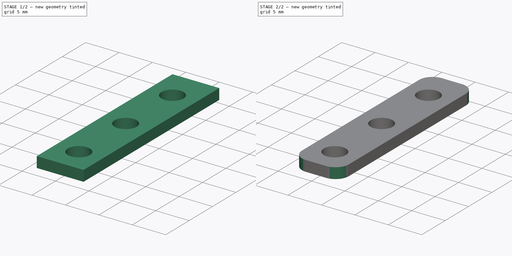
[diagram: build sequence overview — one tinted view per stage of 2, left to right]
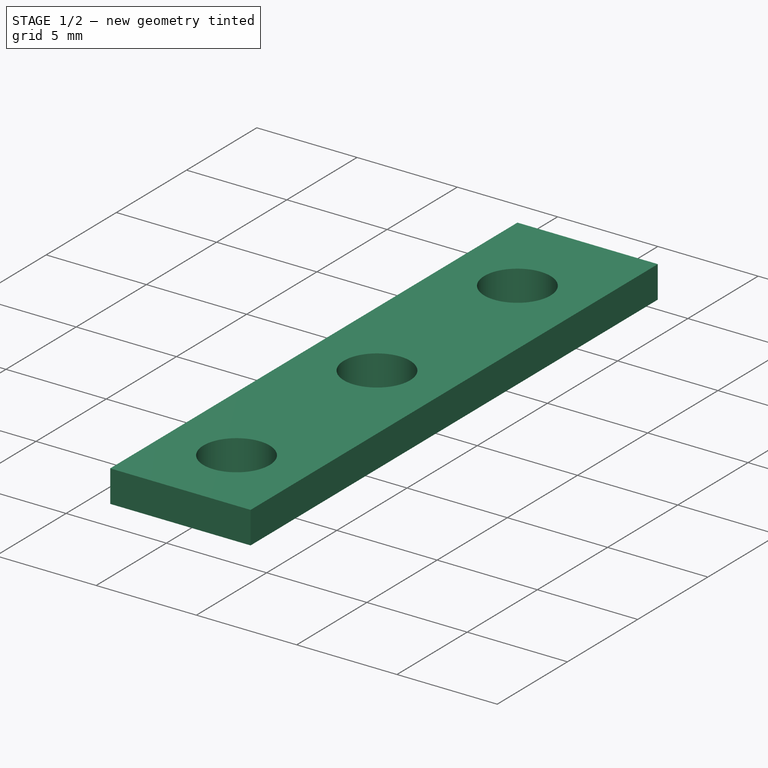
[diagram: stage 1 of 2 — iso view after this stage's code; geometry added in this stage tinted green]
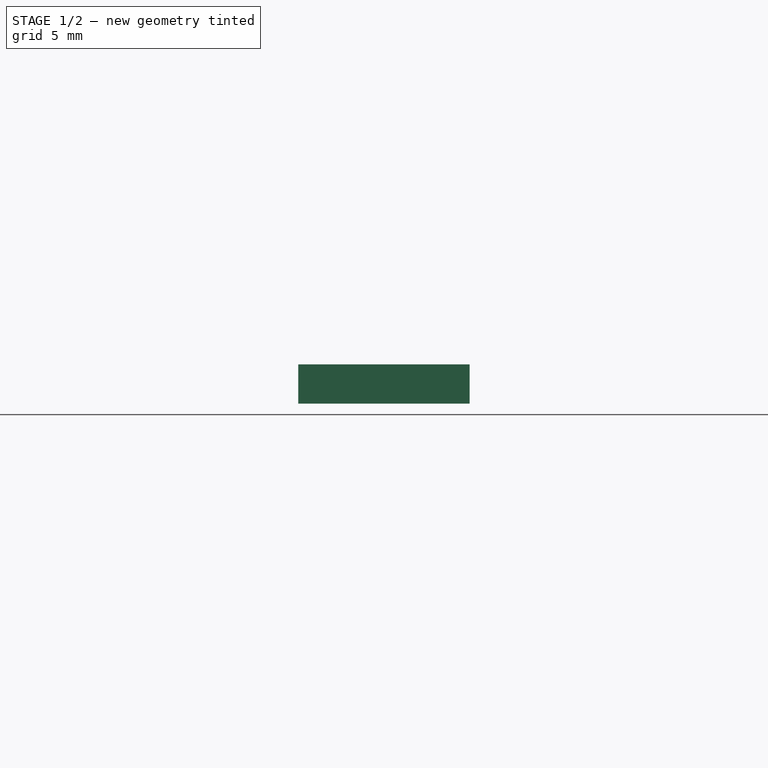
[diagram: stage 1 of 2 — front view after this stage's code; geometry added in this stage tinted green]
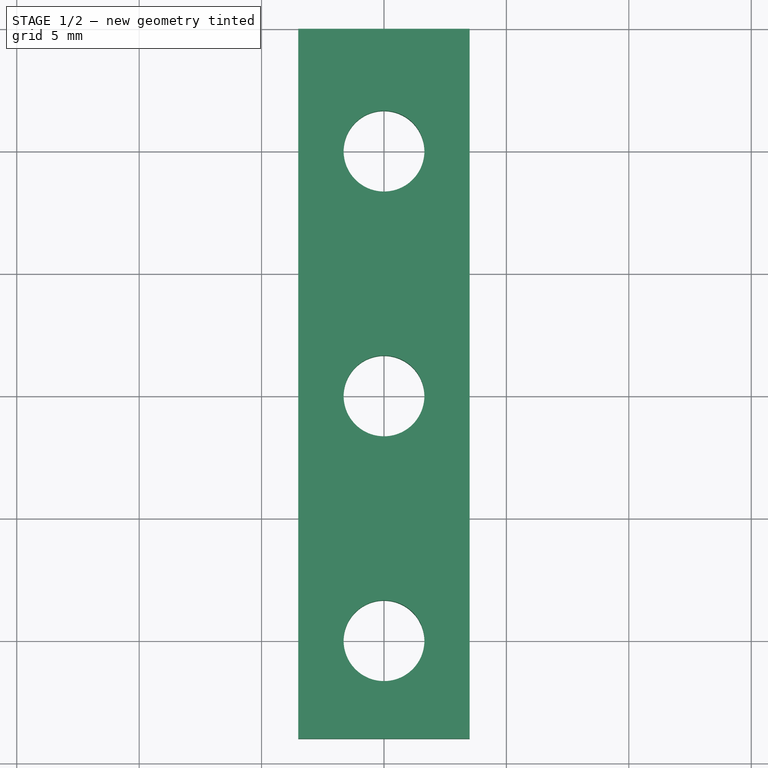
[diagram: stage 1 of 2 — top view after this stage's code; geometry added in this stage tinted green]
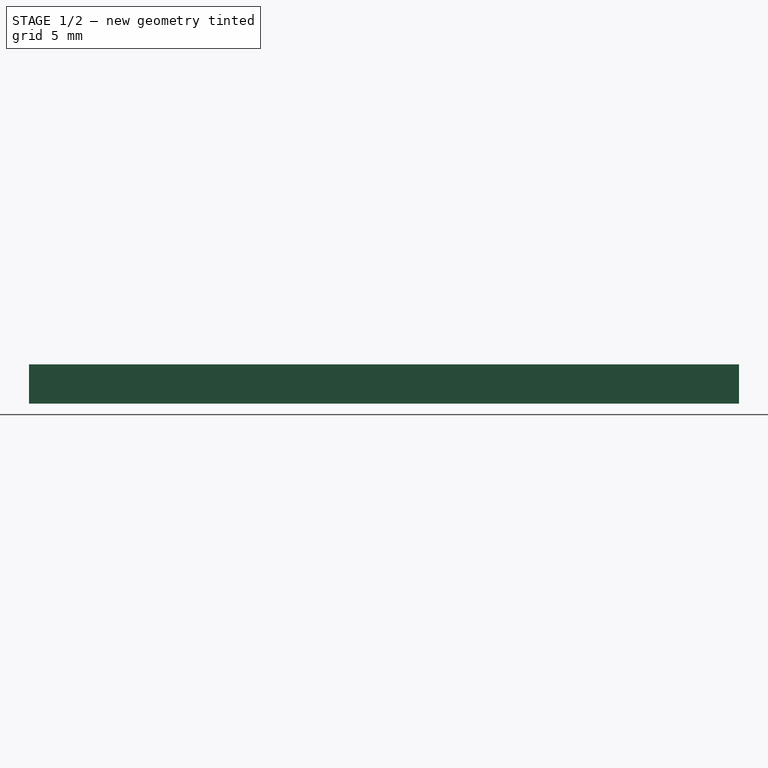
[diagram: stage 1 of 2 — right view after this stage's code; geometry added in this stage tinted green]
FCSTD DOCUMENT  (FreeCAD 0.19R24276 (Git))
Label: Pcb_support_spacer_bottom_v1
License: All rights reserved
LicenseURL: http://en.wikipedia.org/wiki/All_rights_reserved
objects: Sketcher::SketchObject×1, PartDesign::Pad×1, PartDesign::Fillet×1, PartDesign::Body×1
note: 6 computed .brp shape members not serialized (recipe doc carries the construction recipe); baked Part::Feature solids carry a one-line shape summary decoded from their .brp

FEATURE [Sketcher::SketchObject] Sketch
  FullyConstrained = true
  MapMode = 5
  Support = -> [XY_Plane]
  sketch-geometry (12):
    g0: Circle CenterX=0 CenterY=0 CenterZ=0 NormalX=0 NormalY=0 NormalZ=1 AngleXU=0 Radius=1.65
    g1: Circle CenterX=0 CenterY=-10 CenterZ=0 NormalX=0 NormalY=0 NormalZ=1 AngleXU=0 Radius=1.65
    g2: LineSegment StartX=3.5 StartY=5 StartZ=0 EndX=3.5 EndY=-24 EndZ=0
    g3: LineSegment StartX=3.5 StartY=-24 StartZ=0 EndX=-3.5 EndY=-24 EndZ=0
    g4: LineSegment StartX=-3.5 StartY=-24 StartZ=0 EndX=-3.5 EndY=-5 EndZ=0
    g5: LineSegment StartX=0 StartY=0 StartZ=0 EndX=0 EndY=-24 EndZ=0
    g6: LineSegment StartX=-10 StartY=5 StartZ=0 EndX=-10 EndY=-5 EndZ=0
    g7: LineSegment StartX=-10 StartY=-5 StartZ=0 EndX=-3.5 EndY=-5 EndZ=0
    g8: LineSegment StartX=-10 StartY=5 StartZ=0 EndX=3.5 EndY=5 EndZ=0
    g9: Circle CenterX=0 CenterY=-20 CenterZ=0 NormalX=0 NormalY=0 NormalZ=1 AngleXU=0 Radius=1.65
    g10: LineSegment StartX=3.5 StartY=5 StartZ=0 EndX=-3.5 EndY=5 EndZ=0
    g11: LineSegment StartX=-3.5 StartY=-24 StartZ=0 EndX=-3.5 EndY=5 EndZ=0
  constraints (34):
    c: Coincident(g0,g-1)
    c: PointOnObject(g1,g-2)
    c: Equal(g0,g1)
    c: Diameter(g1) = 3.3
    c: Coincident(g2,g3)
    c: Coincident(g3,g4)
    c: Horizontal(g3)
    c: Vertical(g2)
    c: Vertical(g4)
    c: Coincident(g5,g0)
    c: PointOnObject(g5,g-2)
    c: Symmetric(g3,g2,g5)
    c: DistanceX(g3,g3) = 7
    c: DistanceY(g1,g0) = 10
    c: DistanceY(g3,g1) = 14
    c: Vertical(g6)
    c: DistanceX(g6,g0) = 10
    c: Horizontal(g7)
    c: Coincident(g6,g7)
    c: Coincident(g4,g7)
    c: DistanceY(g6,g6) = 10
    c: Coincident(g8,g6)
    c: Coincident(g8,g2)
    c: Horizontal(g8)
    c: DistanceY(g0,g2) = 5
    c: PointOnObject(g9,g-2)
    c: Equal(g1,g9)
    c: DistanceY(g9,g1) = 10
    c: Coincident(g10,g2)
    c: Horizontal(g10)
    c: Coincident(g11,g3)
    c: Vertical(g11)
    c: PointOnObject(g11,g8)
    c: PointOnObject(g10,g11)
FEATURE [PartDesign::Pad] Pad
  Direction = (1,1,1)
  Length = 1.6
  Length2 = 100
  Profile = -> Sketch
  Type = 0
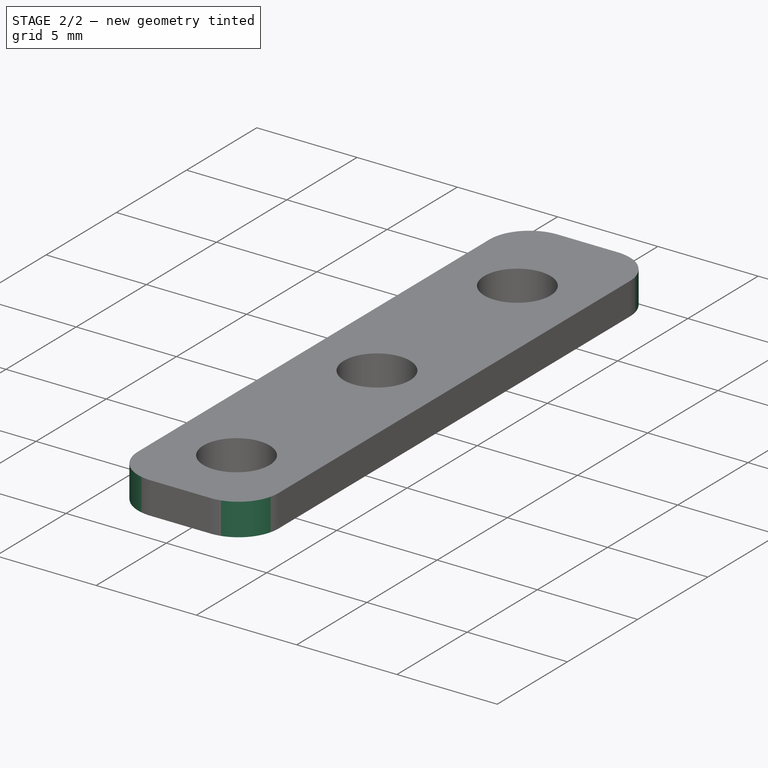
[diagram: stage 2 of 2 — iso view after this stage's code; geometry added in this stage tinted green]
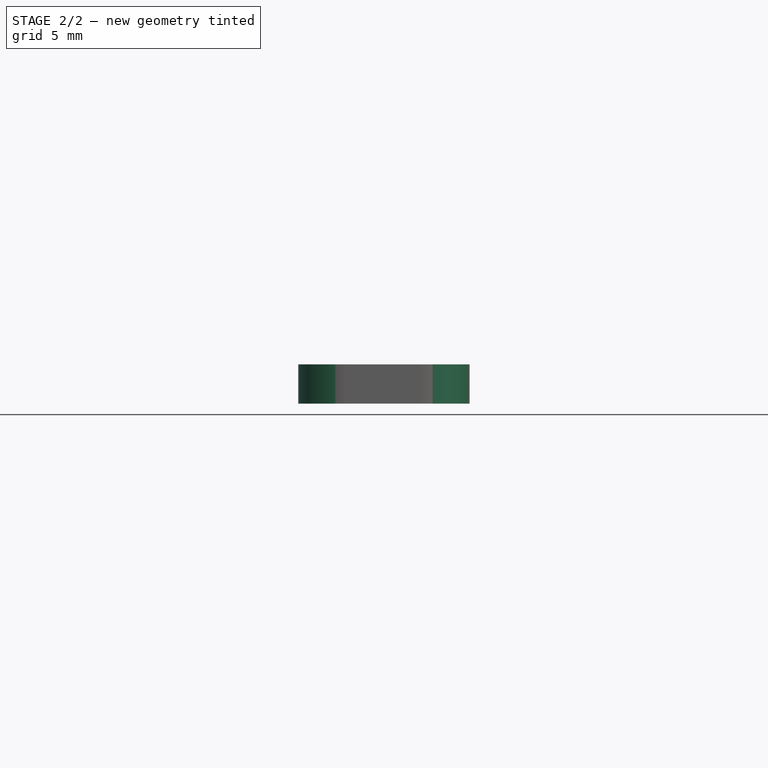
[diagram: stage 2 of 2 — front view after this stage's code; geometry added in this stage tinted green]
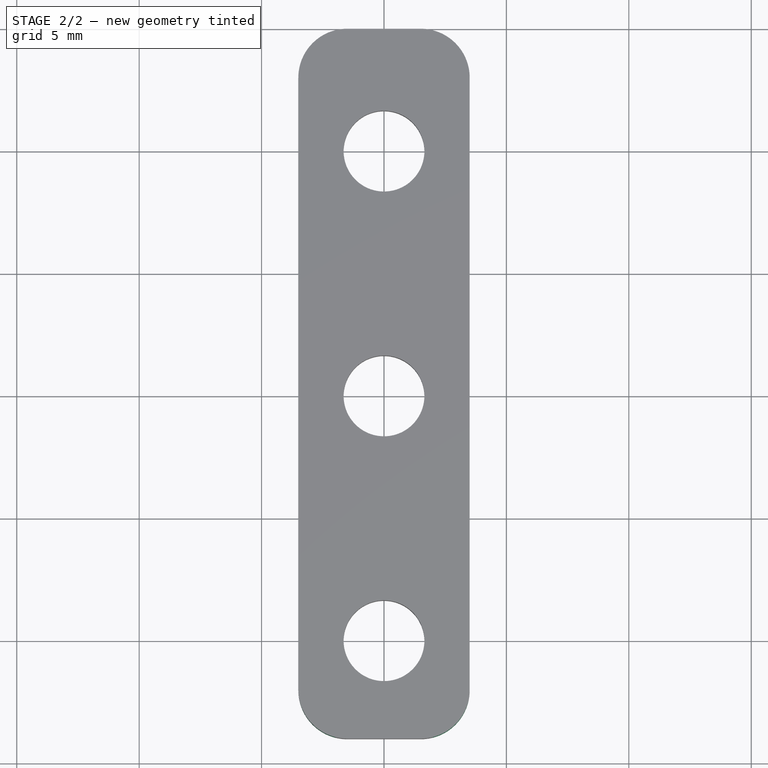
[diagram: stage 2 of 2 — top view after this stage's code; geometry added in this stage tinted green]
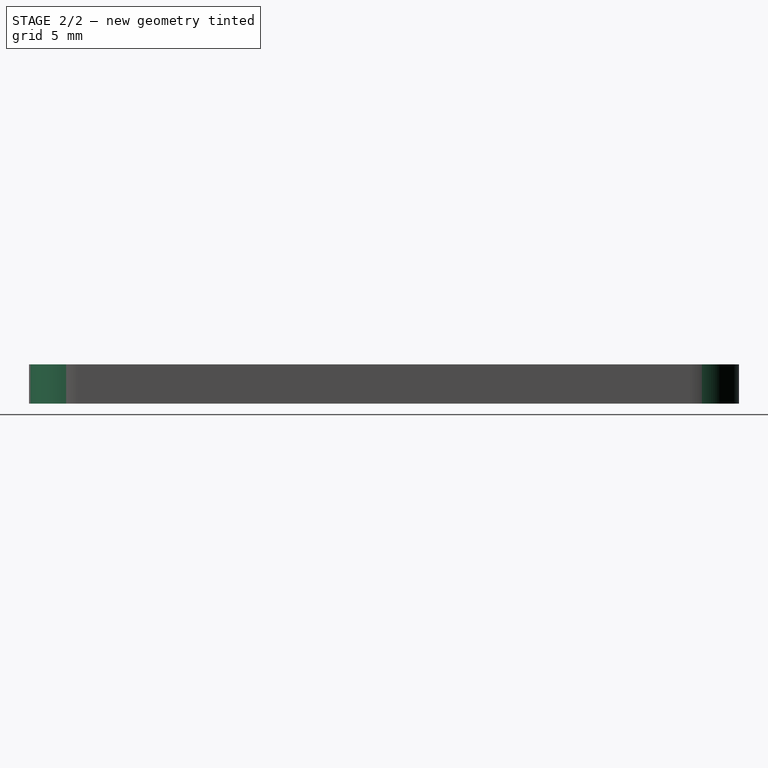
[diagram: stage 2 of 2 — right view after this stage's code; geometry added in this stage tinted green]
FEATURE [PartDesign::Fillet] Fillet
  Base = -> Pad [Edge1,Edge2,Edge5,Edge8]
  BaseFeature = -> Pad
  Radius = 2
  SupportTransform = false
FEATURE [PartDesign::Body] Body
  Group = -> [Sketch,Pad,Fillet]
  Origin = -> Origin
  Tip = -> Fillet
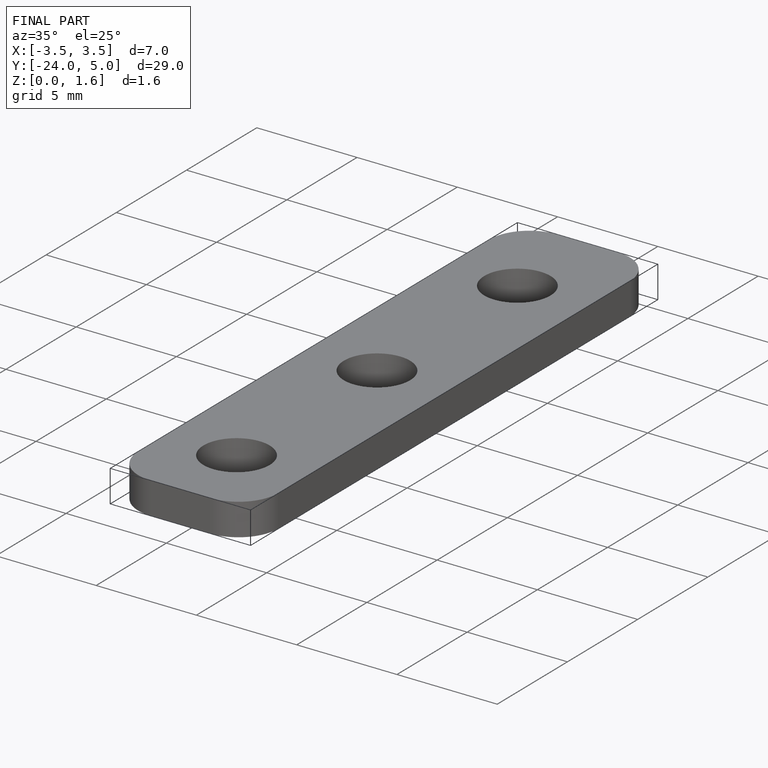
[diagram: finished part — iso view with bounding-box wireframe]
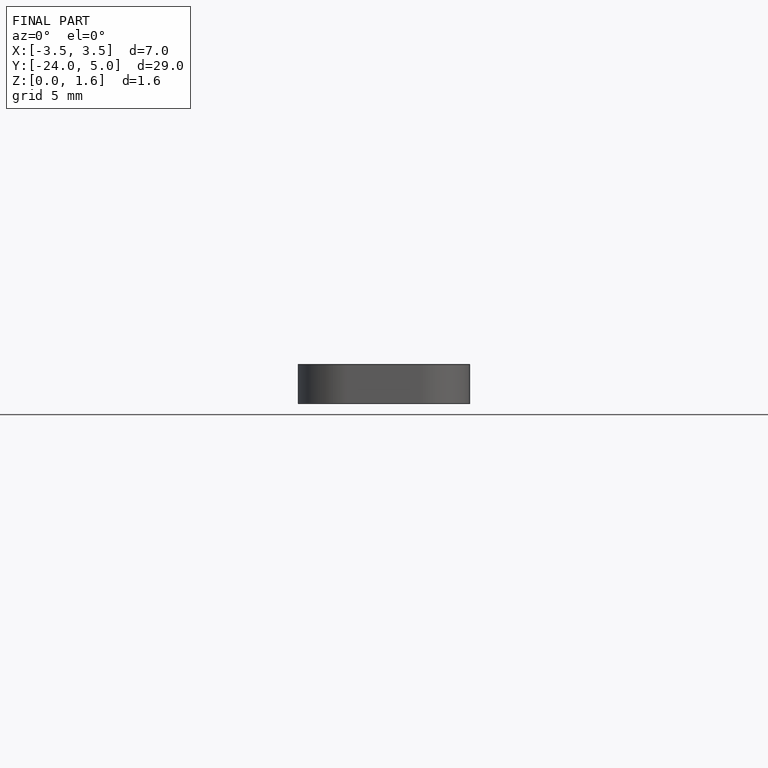
[diagram: finished part — front view with bounding-box wireframe]
